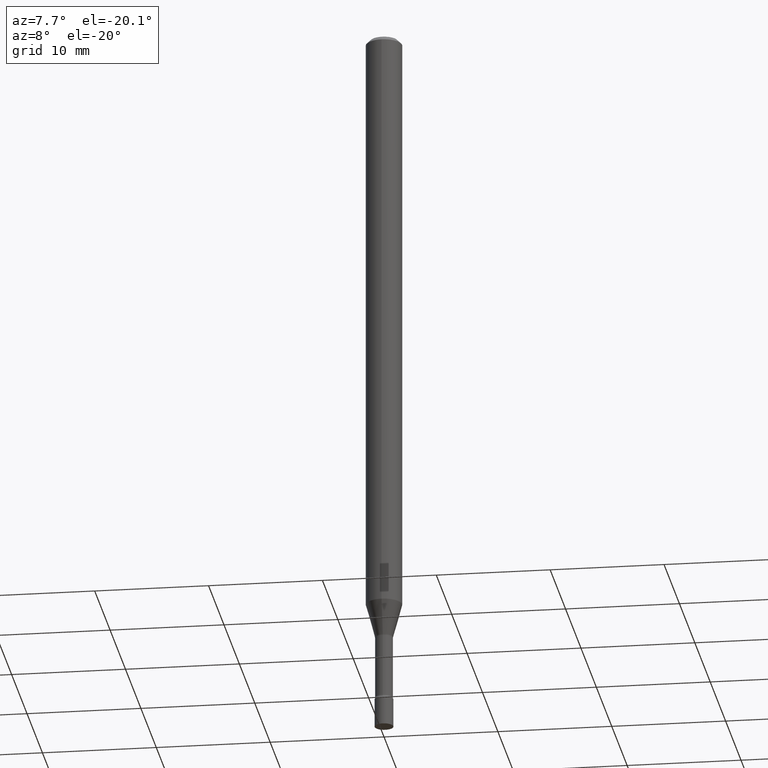
[diagram: clean part render]
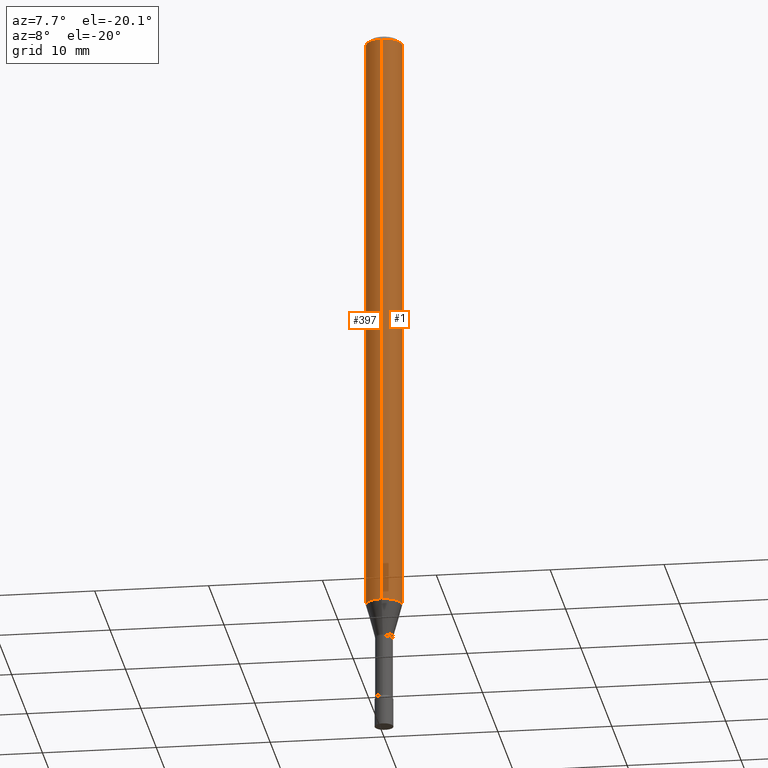
[diagram: same view with one multi-face feature highlighted, each face labeled with its STEP entity id]
A machine part, auxiliary view. The highlighted faces form ONE feature: a constant-radius fillet chain: 2 tangent blend faces with common blend radius 1.5875 mm. The faces share edges in the B-rep.
Their STEP definitions:
[1] entity #397 (Cylinder):
#11 = AXIS2_PLACEMENT_3D ( 'NONE', #359, #149, #324 ) ;
#12 = DIRECTION ( 'NONE',  ( -2.445450430524897640E-29, 3.491507653834484674E-15, 1.000000000000000000 ) ) ;
#15 = DIRECTION ( 'NONE',  ( -6.982962677686265922E-15, -1.000000000000000000, 3.491507653834485069E-15 ) ) ;
#36 = LINE ( 'NONE', #160, #318 ) ;
#42 = CARTESIAN_POINT ( 'NONE',  ( 3.668175645787353746E-31, -5.237261480751738302E-17, -0.01500000000000003067 ) ) ;
#77 = DIRECTION ( 'NONE',  ( -2.445450430524897640E-29, 3.491507653834484674E-15, 1.000000000000000000 ) ) ;
#79 = VERTEX_POINT ( 'NONE', #92 ) ;
#92 = CARTESIAN_POINT ( 'NONE',  ( 4.440892098501126102E-16, 0.06249999999999279743, -2.055760976698175035 ) ) ;
#130 = CARTESIAN_POINT ( 'NONE',  ( -4.364351673553916201E-16, -0.06250000000000000000, 2.182192283646553168E-16 ) ) ;
#149 = DIRECTION ( 'NONE',  ( -2.445450430524897920E-29, 3.491507653834485069E-15, 1.000000000000000000 ) ) ;
#160 = CARTESIAN_POINT ( 'NONE',  ( 4.440892098500625669E-16, 0.06250000000000000000, -2.182192283646553168E-16 ) ) ;
#161 = ORIENTED_EDGE ( 'NONE', *, *, #286, .T. ) ;
#165 = VERTEX_POINT ( 'NONE', #356 ) ;
#192 = CIRCLE ( 'NONE', #11, 0.06250000000000000000 ) ;
#214 = FACE_OUTER_BOUND ( 'NONE', #247, .T. ) ;
#216 = ORIENTED_EDGE ( 'NONE', *, *, #261, .F. ) ;
#222 = CARTESIAN_POINT ( 'NONE',  ( 0.000000000000000000, 0.000000000000000000, 0.000000000000000000 ) ) ;
#231 = EDGE_CURVE ( 'NONE', #283, #165, #310, .T. ) ;
#247 = EDGE_LOOP ( 'NONE', ( #216, #161, #438, #325 ) ) ;
#260 = VECTOR ( 'NONE', #12, 39.37007874015748143 ) ;
#261 = EDGE_CURVE ( 'NONE', #79, #283, #36, .T. ) ;
#278 = CARTESIAN_POINT ( 'NONE',  ( -4.364351673553415274E-16, -0.06250000000000720257, -2.055760976698174591 ) ) ;
#283 = VERTEX_POINT ( 'NONE', #398 ) ;
#286 = EDGE_CURVE ( 'NONE', #79, #360, #192, .T. ) ;
#310 = CIRCLE ( 'NONE', #326, 0.06250000000000000000 ) ;
#318 = VECTOR ( 'NONE', #77, 39.37007874015748143 ) ;
#324 = DIRECTION ( 'NONE',  ( -6.982962677686265922E-15, -1.000000000000000000, 4.370956789862821150E-15 ) ) ;
#325 = ORIENTED_EDGE ( 'NONE', *, *, #231, .F. ) ;
#326 = AXIS2_PLACEMENT_3D ( 'NONE', #42, #447, #355 ) ;
#355 = DIRECTION ( 'NONE',  ( -6.982962677686265922E-15, -1.000000000000000000, 3.483106191921935554E-15 ) ) ;
#356 = CARTESIAN_POINT ( 'NONE',  ( -4.364351673553912750E-16, -0.06250000000000005551, -0.01499999999999981209 ) ) ;
#359 = CARTESIAN_POINT ( 'NONE',  ( 5.027261565522835838E-29, -7.177705184595932540E-15, -2.055760976698174591 ) ) ;
#360 = VERTEX_POINT ( 'NONE', #278 ) ;
#375 = LINE ( 'NONE', #130, #260 ) ;
#382 = CYLINDRICAL_SURFACE ( 'NONE', #415, 0.06250000000000000000 ) ;
#397 = ADVANCED_FACE ( 'NONE', ( #214 ), #382, .T. ) ;
#398 = CARTESIAN_POINT ( 'NONE',  ( 4.440892098501132019E-16, 0.06249999999999995143, -0.01500000000000024751 ) ) ;
#415 = AXIS2_PLACEMENT_3D ( 'NONE', #222, #497, #15 ) ;
#438 = ORIENTED_EDGE ( 'NONE', *, *, #466, .T. ) ;
#447 = DIRECTION ( 'NONE',  ( -2.445450430524897920E-29, 3.491507653834485069E-15, 1.000000000000000000 ) ) ;
#466 = EDGE_CURVE ( 'NONE', #360, #165, #375, .T. ) ;
#497 = DIRECTION ( 'NONE',  ( -2.445450430524897920E-29, 3.491507653834485069E-15, 1.000000000000000000 ) ) ;
[2] entity #1 (Cylinder):
#1 = ADVANCED_FACE ( 'NONE', ( #135 ), #285, .T. ) ;
#12 = DIRECTION ( 'NONE',  ( -2.445450430524897640E-29, 3.491507653834484674E-15, 1.000000000000000000 ) ) ;
#16 = DIRECTION ( 'NONE',  ( -2.445450430524897920E-29, 3.491507653834485069E-15, 1.000000000000000000 ) ) ;
#26 = CIRCLE ( 'NONE', #108, 0.06250000000000000000 ) ;
#36 = LINE ( 'NONE', #160, #318 ) ;
#43 = ORIENTED_EDGE ( 'NONE', *, *, #69, .F. ) ;
#69 = EDGE_CURVE ( 'NONE', #165, #283, #26, .T. ) ;
#77 = DIRECTION ( 'NONE',  ( -2.445450430524897640E-29, 3.491507653834484674E-15, 1.000000000000000000 ) ) ;
#79 = VERTEX_POINT ( 'NONE', #92 ) ;
#92 = CARTESIAN_POINT ( 'NONE',  ( 4.440892098501126102E-16, 0.06249999999999279743, -2.055760976698175035 ) ) ;
#108 = AXIS2_PLACEMENT_3D ( 'NONE', #274, #16, #134 ) ;
#116 = ORIENTED_EDGE ( 'NONE', *, *, #466, .F. ) ;
#130 = CARTESIAN_POINT ( 'NONE',  ( -4.364351673553916201E-16, -0.06250000000000000000, 2.182192283646553168E-16 ) ) ;
#134 = DIRECTION ( 'NONE',  ( -6.982962677686265922E-15, -1.000000000000000000, 3.483106191921935554E-15 ) ) ;
#135 = FACE_OUTER_BOUND ( 'NONE', #489, .T. ) ;
#160 = CARTESIAN_POINT ( 'NONE',  ( 4.440892098500625669E-16, 0.06250000000000000000, -2.182192283646553168E-16 ) ) ;
#165 = VERTEX_POINT ( 'NONE', #356 ) ;
#184 = AXIS2_PLACEMENT_3D ( 'NONE', #330, #380, #446 ) ;
#260 = VECTOR ( 'NONE', #12, 39.37007874015748143 ) ;
#261 = EDGE_CURVE ( 'NONE', #79, #283, #36, .T. ) ;
#274 = CARTESIAN_POINT ( 'NONE',  ( 3.668175645787353746E-31, -5.237261480751738302E-17, -0.01500000000000003067 ) ) ;
#278 = CARTESIAN_POINT ( 'NONE',  ( -4.364351673553415274E-16, -0.06250000000000720257, -2.055760976698174591 ) ) ;
#283 = VERTEX_POINT ( 'NONE', #398 ) ;
#285 = CYLINDRICAL_SURFACE ( 'NONE', #184, 0.06250000000000000000 ) ;
#318 = VECTOR ( 'NONE', #77, 39.37007874015748143 ) ;
#330 = CARTESIAN_POINT ( 'NONE',  ( 0.000000000000000000, 0.000000000000000000, 0.000000000000000000 ) ) ;
#354 = ORIENTED_EDGE ( 'NONE', *, *, #261, .T. ) ;
#356 = CARTESIAN_POINT ( 'NONE',  ( -4.364351673553912750E-16, -0.06250000000000005551, -0.01499999999999981209 ) ) ;
#360 = VERTEX_POINT ( 'NONE', #278 ) ;
#375 = LINE ( 'NONE', #130, #260 ) ;
#378 = DIRECTION ( 'NONE',  ( -2.445450430524897920E-29, 3.491507653834485069E-15, 1.000000000000000000 ) ) ;
#380 = DIRECTION ( 'NONE',  ( -2.445450430524897920E-29, 3.491507653834485069E-15, 1.000000000000000000 ) ) ;
#395 = ORIENTED_EDGE ( 'NONE', *, *, #430, .T. ) ;
#398 = CARTESIAN_POINT ( 'NONE',  ( 4.440892098501132019E-16, 0.06249999999999995143, -0.01500000000000024751 ) ) ;
#405 = DIRECTION ( 'NONE',  ( -6.982962677686265922E-15, -1.000000000000000000, 4.370956789862821150E-15 ) ) ;
#430 = EDGE_CURVE ( 'NONE', #360, #79, #473, .T. ) ;
#446 = DIRECTION ( 'NONE',  ( -6.982962677686265922E-15, -1.000000000000000000, 3.491507653834485069E-15 ) ) ;
#466 = EDGE_CURVE ( 'NONE', #360, #165, #375, .T. ) ;
#470 = CARTESIAN_POINT ( 'NONE',  ( 5.027261565522835838E-29, -7.177705184595932540E-15, -2.055760976698174591 ) ) ;
#473 = CIRCLE ( 'NONE', #495, 0.06250000000000000000 ) ;
#489 = EDGE_LOOP ( 'NONE', ( #395, #354, #43, #116 ) ) ;
#495 = AXIS2_PLACEMENT_3D ( 'NONE', #470, #378, #405 ) ;